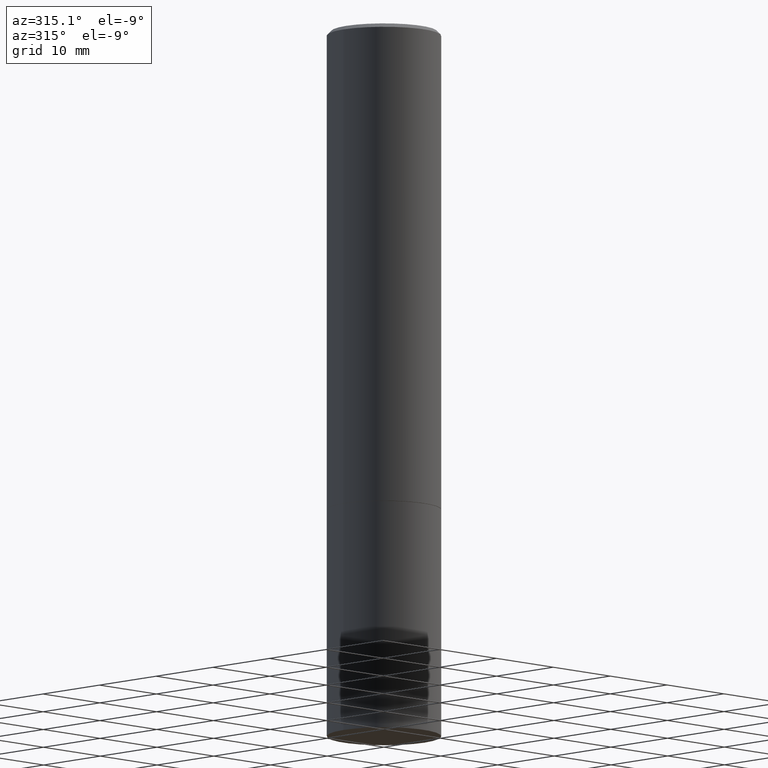
[diagram: clean part render]
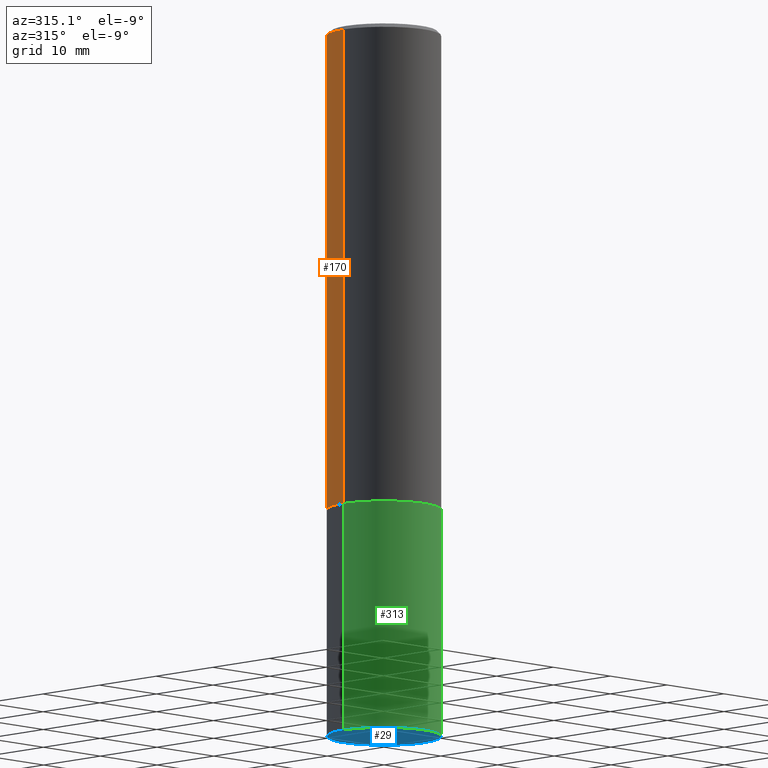
[diagram: same view with three faces highlighted in distinct colors, each labeled with its STEP entity id]
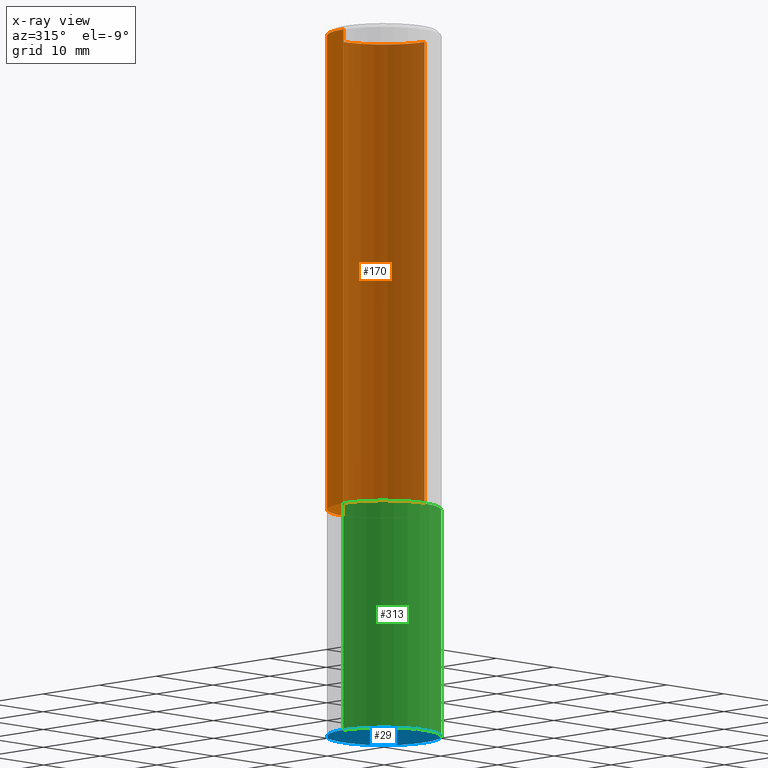
[diagram: x-ray of the same camera — body ghosted, the three highlighted faces saturated]
A machine part, auxiliary view with three faces highlighted in distinct colors.
The next image is the same camera in x-ray (body ghosted, the three faces saturated) — at least one of them is partly hidden behind the body in this view.
Their STEP definitions:

[orange] entity #170 — the highlighted cylindrical surface (partial cylindrical patch) has radius 7.1437 mm, axis along (-0, 0, 1).
#1 = EDGE_CURVE ( 'NONE', #129, #296, #18, .T. ) ;
#9 = AXIS2_PLACEMENT_3D ( 'NONE', #343, #88, #317 ) ;
#18 = CIRCLE ( 'NONE', #288, 0.2812499999999996114 ) ;
#43 = VERTEX_POINT ( 'NONE', #184 ) ;
#46 = CARTESIAN_POINT ( 'NONE',  ( 4.890937612370292426E-31, -6.982962677686317493E-17, -0.02000000000000007674 ) ) ;
#47 = EDGE_LOOP ( 'NONE', ( #153, #73, #148, #97 ) ) ;
#48 = CIRCLE ( 'NONE', #9, 0.2812500000000000555 ) ;
#51 = DIRECTION ( 'NONE',  ( 1.000000000000000000, -6.982962677686266711E-15, 4.876176775795935793E-29 ) ) ;
#53 = DIRECTION ( 'NONE',  ( -2.445468806185136597E-29, 3.491481338843145583E-15, 1.000000000000000000 ) ) ;
#69 = EDGE_CURVE ( 'NONE', #333, #296, #84, .T. ) ;
#73 = ORIENTED_EDGE ( 'NONE', *, *, #69, .T. ) ;
#76 = EDGE_CURVE ( 'NONE', #43, #333, #48, .T. ) ;
#84 = LINE ( 'NONE', #254, #121 ) ;
#86 = AXIS2_PLACEMENT_3D ( 'NONE', #344, #334, #51 ) ;
#88 = DIRECTION ( 'NONE',  ( -2.445468806185136597E-29, 3.491481338843145583E-15, 1.000000000000000000 ) ) ;
#89 = CARTESIAN_POINT ( 'NONE',  ( 0.2812499999999996114, -1.999344688650103789E-15, -0.02000000000000007674 ) ) ;
#97 = ORIENTED_EDGE ( 'NONE', *, *, #150, .F. ) ;
#121 = VECTOR ( 'NONE', #251, 39.37007874015748143 ) ;
#129 = VERTEX_POINT ( 'NONE', #89 ) ;
#148 = ORIENTED_EDGE ( 'NONE', *, *, #1, .F. ) ;
#150 = EDGE_CURVE ( 'NONE', #43, #129, #277, .T. ) ;
#153 = ORIENTED_EDGE ( 'NONE', *, *, #76, .T. ) ;
#159 = CARTESIAN_POINT ( 'NONE',  ( -0.2812499999999996114, 1.894128626322396848E-15, -0.02000000000000007674 ) ) ;
#166 = CYLINDRICAL_SURFACE ( 'NONE', #86, 0.2812499999999998335 ) ;
#170 = ADVANCED_FACE ( 'NONE', ( #366 ), #166, .T. ) ;
#184 = CARTESIAN_POINT ( 'NONE',  ( 0.2812500000000000555, -1.025273495151288883E-14, -2.373999999999999222 ) ) ;
#187 = DIRECTION ( 'NONE',  ( 1.000000000000000000, -6.982962677686268288E-15, 0.000000000000000000 ) ) ;
#188 = DIRECTION ( 'NONE',  ( -2.445468806185136877E-29, 3.491481338843145188E-15, 1.000000000000000000 ) ) ;
#224 = VECTOR ( 'NONE', #188, 39.37007874015748143 ) ;
#251 = DIRECTION ( 'NONE',  ( -2.445468806185136877E-29, 3.491481338843145188E-15, 1.000000000000000000 ) ) ;
#254 = CARTESIAN_POINT ( 'NONE',  ( -0.2812499999999998335, 1.998401444325280589E-15, -1.383450494134191428E-29 ) ) ;
#277 = LINE ( 'NONE', #307, #224 ) ;
#288 = AXIS2_PLACEMENT_3D ( 'NONE', #46, #53, #187 ) ;
#296 = VERTEX_POINT ( 'NONE', #159 ) ;
#307 = CARTESIAN_POINT ( 'NONE',  ( 0.2812499999999998335, -1.963958253099261329E-15, 1.371424718192606171E-29 ) ) ;
#317 = DIRECTION ( 'NONE',  ( 1.000000000000000000, -6.982962677686268288E-15, 0.000000000000000000 ) ) ;
#333 = VERTEX_POINT ( 'NONE', #338 ) ;
#334 = DIRECTION ( 'NONE',  ( -2.445468806185136597E-29, 3.491481338843145583E-15, 1.000000000000000000 ) ) ;
#338 = CARTESIAN_POINT ( 'NONE',  ( -0.2812500000000000000, -2.180901718269959487E-15, -2.373999999999999222 ) ) ;
#343 = CARTESIAN_POINT ( 'NONE',  ( 5.805542945883512693E-29, -8.288776698413625533E-15, -2.373999999999999222 ) ) ;
#344 = CARTESIAN_POINT ( 'NONE',  ( 0.000000000000000000, 0.000000000000000000, 0.000000000000000000 ) ) ;
#366 = FACE_OUTER_BOUND ( 'NONE', #47, .T. ) ;

[blue] entity #29 — the highlighted planar face has unit normal (0, -0, -1).
#6 = DIRECTION ( 'NONE',  ( 1.000000000000000000, -6.982962677686269866E-15, 0.000000000000000000 ) ) ;
#17 = CARTESIAN_POINT ( 'NONE',  ( 1.963958253099348104E-15, 0.2812499999999877875, -3.500000000000000888 ) ) ;
#21 = CARTESIAN_POINT ( 'NONE',  ( 0.2812500000000000000, -1.418414293905027264E-14, -3.500000000000000000 ) ) ;
#29 = ADVANCED_FACE ( 'NONE', ( #161 ), #271, .T. ) ;
#30 = DIRECTION ( 'NONE',  ( 1.000000000000000000, -6.982962677686269866E-15, 0.000000000000000000 ) ) ;
#33 = VERTEX_POINT ( 'NONE', #21 ) ;
#34 = CARTESIAN_POINT ( 'NONE',  ( 8.559140821647976968E-29, -1.222018468595100934E-14, -3.500000000000000000 ) ) ;
#49 = EDGE_LOOP ( 'NONE', ( #105, #235 ) ) ;
#105 = ORIENTED_EDGE ( 'NONE', *, *, #267, .F. ) ;
#151 = CIRCLE ( 'NONE', #295, 0.2812500000000000000 ) ;
#161 = FACE_OUTER_BOUND ( 'NONE', #49, .T. ) ;
#164 = DIRECTION ( 'NONE',  ( -2.445468806185136597E-29, 3.491481338843145583E-15, 1.000000000000000000 ) ) ;
#192 = EDGE_CURVE ( 'NONE', #264, #33, #151, .T. ) ;
#193 = AXIS2_PLACEMENT_3D ( 'NONE', #34, #203, #30 ) ;
#203 = DIRECTION ( 'NONE',  ( -2.445468806185136597E-29, 3.491481338843145583E-15, 1.000000000000000000 ) ) ;
#235 = ORIENTED_EDGE ( 'NONE', *, *, #192, .F. ) ;
#247 = CARTESIAN_POINT ( 'NONE',  ( 8.559140821647976968E-29, -1.222018468595100934E-14, -3.500000000000000000 ) ) ;
#264 = VERTEX_POINT ( 'NONE', #290 ) ;
#267 = EDGE_CURVE ( 'NONE', #33, #264, #279, .T. ) ;
#271 = PLANE ( 'NONE',  #311 ) ;
#276 = DIRECTION ( 'NONE',  ( -1.000000000000000000, 6.982962677686265922E-15, -4.876176775795935793E-29 ) ) ;
#279 = CIRCLE ( 'NONE', #193, 0.2812500000000000000 ) ;
#290 = CARTESIAN_POINT ( 'NONE',  ( -0.2812500000000000000, -8.257824988526456379E-15, -3.500000000000000000 ) ) ;
#295 = AXIS2_PLACEMENT_3D ( 'NONE', #247, #164, #6 ) ;
#301 = DIRECTION ( 'NONE',  ( 2.438088387897960049E-29, -3.491481338843145188E-15, -1.000000000000000000 ) ) ;
#311 = AXIS2_PLACEMENT_3D ( 'NONE', #17, #301, #276 ) ;

[green] entity #313 — the highlighted cylindrical surface (partial cylindrical patch) has radius 7.1437 mm, axis along (-0, 0, 1).
#6 = DIRECTION ( 'NONE',  ( 1.000000000000000000, -6.982962677686269866E-15, 0.000000000000000000 ) ) ;
#21 = CARTESIAN_POINT ( 'NONE',  ( 0.2812500000000000000, -1.418414293905027264E-14, -3.500000000000000000 ) ) ;
#22 = CYLINDRICAL_SURFACE ( 'NONE', #328, 0.2812500000000000000 ) ;
#24 = ORIENTED_EDGE ( 'NONE', *, *, #192, .T. ) ;
#33 = VERTEX_POINT ( 'NONE', #21 ) ;
#44 = DIRECTION ( 'NONE',  ( 1.000000000000000000, -6.982962677686266711E-15, 4.876176775795935793E-29 ) ) ;
#68 = ORIENTED_EDGE ( 'NONE', *, *, #244, .T. ) ;
#71 = VECTOR ( 'NONE', #199, 39.37007874015748143 ) ;
#92 = LINE ( 'NONE', #169, #71 ) ;
#93 = CARTESIAN_POINT ( 'NONE',  ( 0.2812500000000000000, -1.025622643285173184E-14, -2.374999999999999556 ) ) ;
#102 = CARTESIAN_POINT ( 'NONE',  ( -0.2812500000000000000, 1.998401444325281773E-15, -1.383450494134192269E-29 ) ) ;
#114 = CARTESIAN_POINT ( 'NONE',  ( 5.807988414689698296E-29, -8.292268179752468540E-15, -2.374999999999999556 ) ) ;
#122 = AXIS2_PLACEMENT_3D ( 'NONE', #114, #342, #185 ) ;
#151 = CIRCLE ( 'NONE', #295, 0.2812500000000000000 ) ;
#163 = CIRCLE ( 'NONE', #122, 0.2812500000000000000 ) ;
#164 = DIRECTION ( 'NONE',  ( -2.445468806185136597E-29, 3.491481338843145583E-15, 1.000000000000000000 ) ) ;
#169 = CARTESIAN_POINT ( 'NONE',  ( 0.2812500000000000000, -1.963958253099262512E-15, 1.371424718192607012E-29 ) ) ;
#171 = ORIENTED_EDGE ( 'NONE', *, *, #229, .F. ) ;
#179 = FACE_OUTER_BOUND ( 'NONE', #306, .T. ) ;
#185 = DIRECTION ( 'NONE',  ( 1.000000000000000000, -6.982962677686269866E-15, 0.000000000000000000 ) ) ;
#192 = EDGE_CURVE ( 'NONE', #264, #33, #151, .T. ) ;
#199 = DIRECTION ( 'NONE',  ( -2.445468806185136877E-29, 3.491481338843145188E-15, 1.000000000000000000 ) ) ;
#213 = CARTESIAN_POINT ( 'NONE',  ( 0.000000000000000000, 0.000000000000000000, 0.000000000000000000 ) ) ;
#214 = EDGE_CURVE ( 'NONE', #264, #215, #240, .T. ) ;
#215 = VERTEX_POINT ( 'NONE', #245 ) ;
#229 = EDGE_CURVE ( 'NONE', #215, #356, #163, .T. ) ;
#240 = LINE ( 'NONE', #102, #322 ) ;
#244 = EDGE_CURVE ( 'NONE', #33, #356, #92, .T. ) ;
#245 = CARTESIAN_POINT ( 'NONE',  ( -0.2812500000000000000, -8.257824988526456379E-15, -2.374999999999999556 ) ) ;
#247 = CARTESIAN_POINT ( 'NONE',  ( 8.559140821647976968E-29, -1.222018468595100934E-14, -3.500000000000000000 ) ) ;
#264 = VERTEX_POINT ( 'NONE', #290 ) ;
#290 = CARTESIAN_POINT ( 'NONE',  ( -0.2812500000000000000, -8.257824988526456379E-15, -3.500000000000000000 ) ) ;
#295 = AXIS2_PLACEMENT_3D ( 'NONE', #247, #164, #6 ) ;
#306 = EDGE_LOOP ( 'NONE', ( #309, #24, #68, #171 ) ) ;
#309 = ORIENTED_EDGE ( 'NONE', *, *, #214, .F. ) ;
#313 = ADVANCED_FACE ( 'NONE', ( #179 ), #22, .T. ) ;
#322 = VECTOR ( 'NONE', #353, 39.37007874015748143 ) ;
#328 = AXIS2_PLACEMENT_3D ( 'NONE', #213, #335, #44 ) ;
#335 = DIRECTION ( 'NONE',  ( -2.445468806185136597E-29, 3.491481338843145583E-15, 1.000000000000000000 ) ) ;
#342 = DIRECTION ( 'NONE',  ( -2.445468806185136597E-29, 3.491481338843145583E-15, 1.000000000000000000 ) ) ;
#353 = DIRECTION ( 'NONE',  ( -2.445468806185136877E-29, 3.491481338843145188E-15, 1.000000000000000000 ) ) ;
#356 = VERTEX_POINT ( 'NONE', #93 ) ;